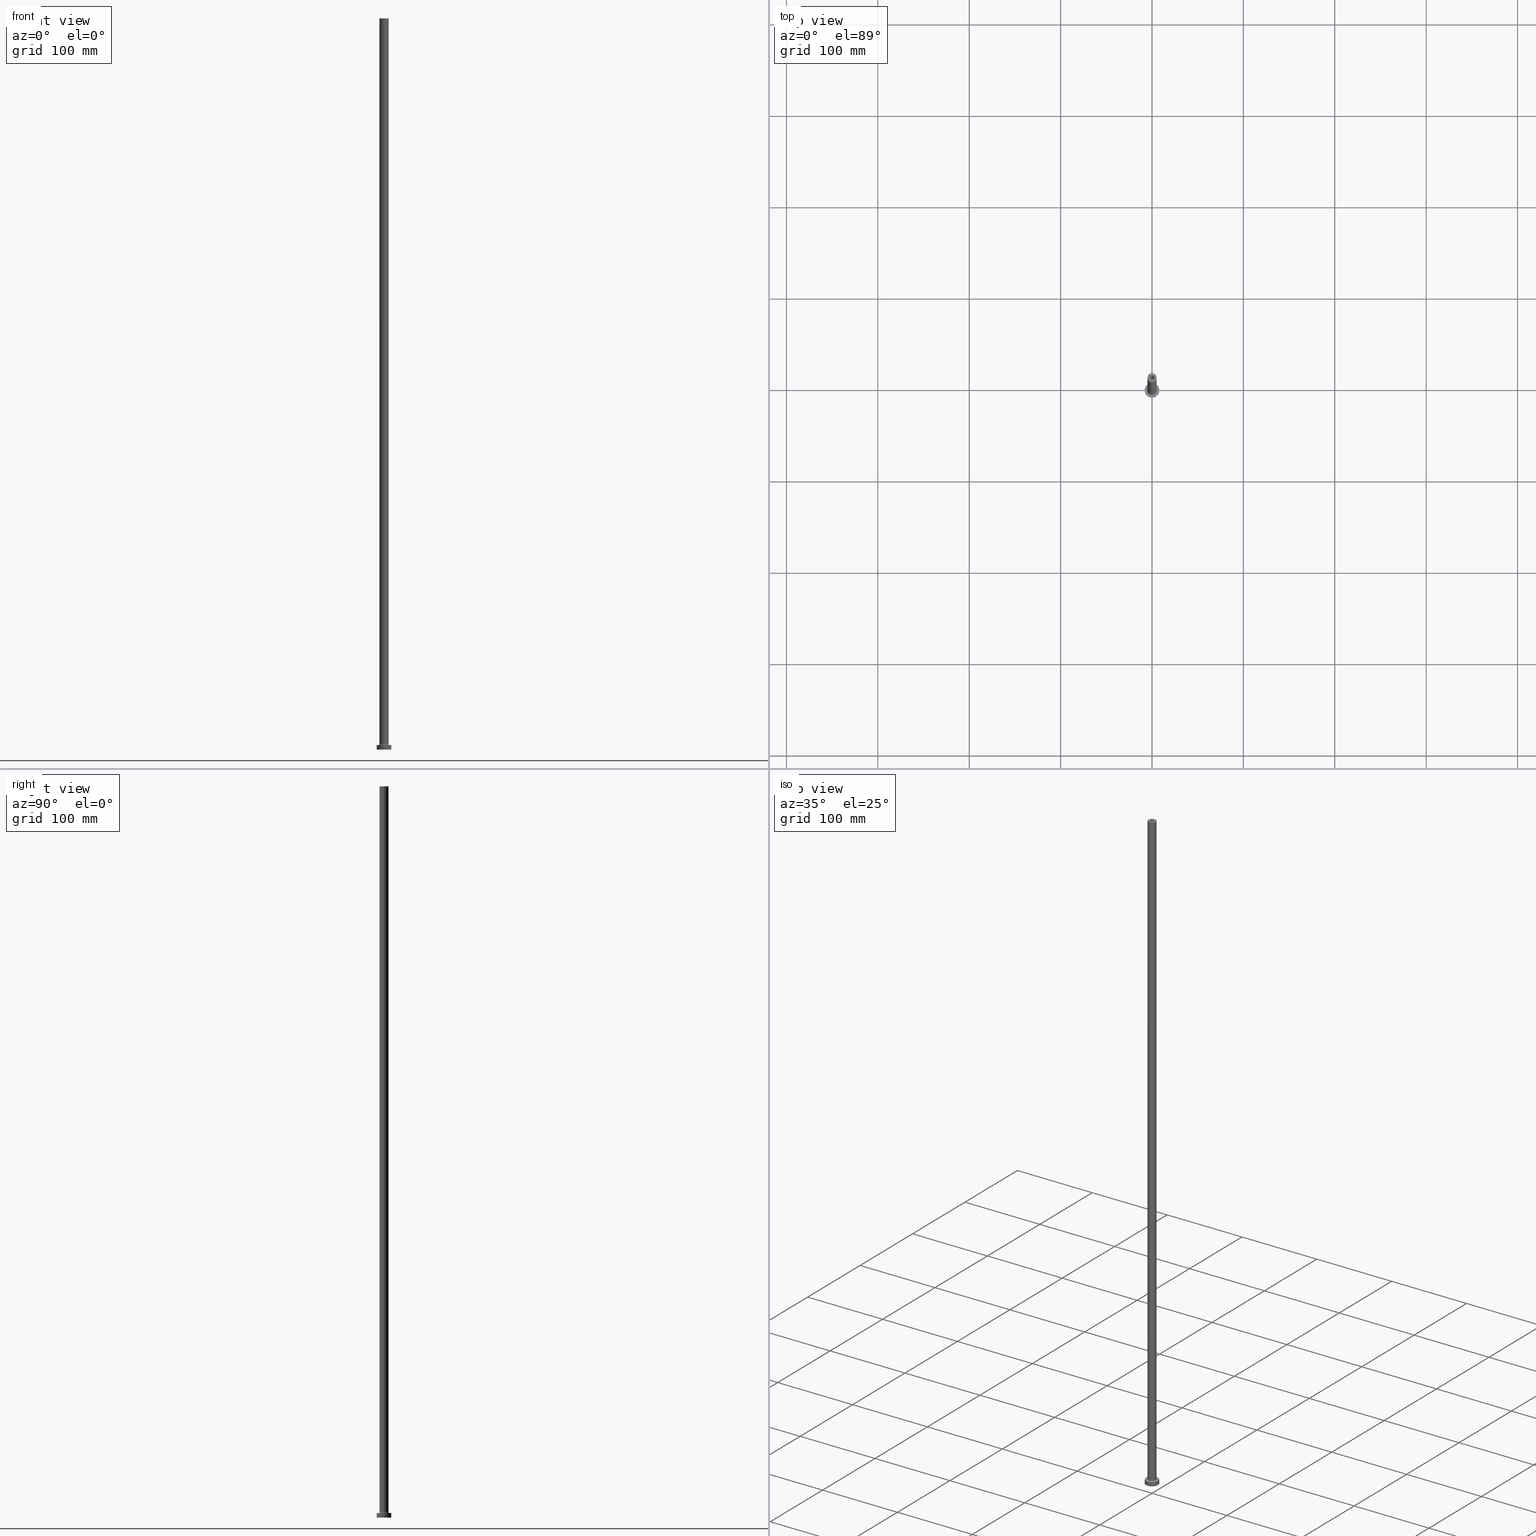
[diagram: canonical four-view strip — front | top / right | iso, engineering-drawing reading convention]
A machine part, canonical four-view strip (front | top / right | iso — engineering-drawing reading convention). The complete STEP part file that produces these views, byte-faithful:
ISO-10303-21;
HEADER;
FILE_DESCRIPTION (( 'STEP AP203' ),
    '1' );
FILE_NAME ('1a59.STEP',
    '2023-02-13T16:56:01',
    ( '' ),
    ( '' ),
    'SwSTEP 2.0',
    'SolidWorks 2019',
    '' );
FILE_SCHEMA (( 'CONFIG_CONTROL_DESIGN' ));
ENDSEC;

DATA;
#1 = DIRECTION ( 'NONE',  ( 0.000000000000000000, 0.000000000000000000, 1.000000000000000000 ) ) ;
#2 = LOCAL_TIME ( 17, 56, 1.000000000000000000, #363 ) ;
#3 = CIRCLE ( 'NONE', #120, 2.649999999999999911 ) ;
#4 = CARTESIAN_POINT ( 'NONE',  ( 2.649999999999999911, 3.245314017740485962E-16, 755.0000000000000000 ) ) ;
#5 = LINE ( 'NONE', #389, #299 ) ;
#6 = AXIS2_PLACEMENT_3D ( 'NONE', #245, #280, #47 ) ;
#7 = DIRECTION ( 'NONE',  ( 0.000000000000000000, 0.000000000000000000, 1.000000000000000000 ) ) ;
#8 = CC_DESIGN_APPROVAL ( #74, ( #235 ) ) ;
#9 = LINE ( 'NONE', #295, #325 ) ;
#10 = APPROVAL_DATE_TIME ( #357, #456 ) ;
#11 = CARTESIAN_POINT ( 'NONE',  ( 2.500000000000000000, 3.061616997868383141E-16, 755.0000000000000000 ) ) ;
#12 = EDGE_LOOP ( 'NONE', ( #359, #119, #17, #135 ) ) ;
#13 = COORDINATED_UNIVERSAL_TIME_OFFSET ( 1, 0, .AHEAD. ) ;
#14 = CIRCLE ( 'NONE', #269, 5.000000000000000000 ) ;
#15 = CARTESIAN_POINT ( 'NONE',  ( -2.500000000000000000, 0.000000000000000000, 755.0000000000000000 ) ) ;
#16 = AXIS2_PLACEMENT_3D ( 'NONE', #137, #273, #108 ) ;
#17 = ORIENTED_EDGE ( 'NONE', *, *, #266, .T. ) ;
#18 = EDGE_CURVE ( 'NONE', #132, #264, #14, .T. ) ;
#19 = LOCAL_TIME ( 17, 56, 1.000000000000000000, #370 ) ;
#20 = DIRECTION ( 'NONE',  ( 0.000000000000000000, 0.000000000000000000, -1.000000000000000000 ) ) ;
#21 = ORIENTED_EDGE ( 'NONE', *, *, #173, .T. ) ;
#22 = EDGE_CURVE ( 'NONE', #371, #219, #78, .T. ) ;
#23 = CARTESIAN_POINT ( 'NONE',  ( 8.000000000000000000, 9.797174393178825657E-16, 0.000000000000000000 ) ) ;
#24 = ORIENTED_EDGE ( 'NONE', *, *, #266, .F. ) ;
#25 = AXIS2_PLACEMENT_3D ( 'NONE', #183, #7, #351 ) ;
#26 = ORIENTED_EDGE ( 'NONE', *, *, #403, .F. ) ;
#27 = ORGANIZATION ( 'NEUR�EN�', 'NEUR�EN�', '' ) ;
#28 = EDGE_CURVE ( 'NONE', #371, #98, #380, .T. ) ;
#29 = PLANE ( 'NONE',  #95 ) ;
#30 = ORIENTED_EDGE ( 'NONE', *, *, #453, .T. ) ;
#31 = PRODUCT ( '1a59', '1a59', '', ( #316 ) ) ;
#32 = FACE_OUTER_BOUND ( 'NONE', #442, .T. ) ;
#33 = DIRECTION ( 'NONE',  ( -0.000000000000000000, -0.000000000000000000, -1.000000000000000000 ) ) ;
#34 = ORIENTED_EDGE ( 'NONE', *, *, #244, .F. ) ;
#35 = EDGE_CURVE ( 'NONE', #132, #416, #338, .T. ) ;
#36 = ORIENTED_EDGE ( 'NONE', *, *, #149, .F. ) ;
#37 = ORIENTED_EDGE ( 'NONE', *, *, #22, .F. ) ;
#38 = DIRECTION ( 'NONE',  ( 0.000000000000000000, 0.000000000000000000, -1.000000000000000000 ) ) ;
#39 = ORIENTED_EDGE ( 'NONE', *, *, #360, .F. ) ;
#40 = CARTESIAN_POINT ( 'NONE',  ( 0.000000000000000000, 0.000000000000000000, 0.000000000000000000 ) ) ;
#41 = DIRECTION ( 'NONE',  ( 1.000000000000000000, 0.000000000000000000, -0.000000000000000000 ) ) ;
#42 = AXIS2_PLACEMENT_3D ( 'NONE', #216, #419, #41 ) ;
#43 = UNCERTAINTY_MEASURE_WITH_UNIT (LENGTH_MEASURE( 1.000000000000000082E-05 ), #310, 'distance_accuracy_value', 'NONE');
#44 = CARTESIAN_POINT ( 'NONE',  ( 8.000000000000000000, 9.797174393178825657E-16, 5.000000000000000000 ) ) ;
#45 = LOCAL_TIME ( 17, 56, 1.000000000000000000, #13 ) ;
#46 = LINE ( 'NONE', #314, #101 ) ;
#47 = DIRECTION ( 'NONE',  ( -1.000000000000000000, 0.000000000000000000, 0.000000000000000000 ) ) ;
#48 = VECTOR ( 'NONE', #210, 1000.000000000000000 ) ;
#49 = COORDINATED_UNIVERSAL_TIME_OFFSET ( 1, 0, .AHEAD. ) ;
#50 = CARTESIAN_POINT ( 'NONE',  ( 0.000000000000000000, 0.000000000000000000, 5.000000000000000000 ) ) ;
#51 = DIRECTION ( 'NONE',  ( 0.000000000000000000, 0.000000000000000000, 1.000000000000000000 ) ) ;
#52 = DIRECTION ( 'NONE',  ( 0.000000000000000000, 0.000000000000000000, 1.000000000000000000 ) ) ;
#53 = EDGE_CURVE ( 'NONE', #416, #123, #459, .T. ) ;
#54 = ORIENTED_EDGE ( 'NONE', *, *, #281, .F. ) ;
#55 = ORIENTED_EDGE ( 'NONE', *, *, #28, .T. ) ;
#56 = APPROVAL_DATE_TIME ( #330, #385 ) ;
#57 = LINE ( 'NONE', #223, #396 ) ;
#58 = ADVANCED_FACE ( 'NONE', ( #72, #232 ), #333, .T. ) ;
#59 = DIRECTION ( 'NONE',  ( 0.000000000000000000, 0.000000000000000000, -1.000000000000000000 ) ) ;
#60 = EDGE_LOOP ( 'NONE', ( #368, #129, #384, #239 ) ) ;
#61 = EDGE_CURVE ( 'NONE', #332, #288, #388, .T. ) ;
#62 = ORIENTED_EDGE ( 'NONE', *, *, #61, .T. ) ;
#63 = PRODUCT_RELATED_PRODUCT_CATEGORY ( 'detail', '', ( #31 ) ) ;
#64 = CIRCLE ( 'NONE', #435, 2.500000000000000000 ) ;
#65 = FACE_OUTER_BOUND ( 'NONE', #433, .T. ) ;
#66 = AXIS2_PLACEMENT_3D ( 'NONE', #252, #406, #293 ) ;
#67 = PRODUCT_DEFINITION_FORMATION_WITH_SPECIFIED_SOURCE ( 'LIBOVOLN�', '', #31, .NOT_KNOWN. ) ;
#68 = DIRECTION ( 'NONE',  ( 0.000000000000000000, 0.000000000000000000, -1.000000000000000000 ) ) ;
#69 = PRODUCT_DEFINITION_SHAPE ( 'NONE', 'NONE',  #229 ) ;
#70 = DIRECTION ( 'NONE',  ( 0.000000000000000000, 0.000000000000000000, 1.000000000000000000 ) ) ;
#71 = ORIENTED_EDGE ( 'NONE', *, *, #18, .F. ) ;
#72 = FACE_BOUND ( 'NONE', #335, .T. ) ;
#73 = VECTOR ( 'NONE', #185, 1000.000000000000000 ) ;
#74 = APPROVAL ( #294, 'NEUR�EN�' ) ;
#75 = CYLINDRICAL_SURFACE ( 'NONE', #262, 2.649999999999999911 ) ;
#76 = DIRECTION ( 'NONE',  ( -1.000000000000000000, 0.000000000000000000, 0.000000000000000000 ) ) ;
#77 = DIRECTION ( 'NONE',  ( 0.000000000000000000, 0.000000000000000000, 1.000000000000000000 ) ) ;
#78 = CIRCLE ( 'NONE', #444, 2.649999999999999911 ) ;
#79 = AXIS2_PLACEMENT_3D ( 'NONE', #309, #381, #171 ) ;
#80 = ADVANCED_FACE ( 'NONE', ( #454 ), #167, .T. ) ;
#81 = FACE_OUTER_BOUND ( 'NONE', #408, .T. ) ;
#82 = PERSON ( 'NEUR�EN�', 'NEUR�EN�', 'NEUR�EN�', ('NEUR�EN�'), ('NEUR�EN�'), ('NEUR�EN�') ) ;
#83 = FACE_OUTER_BOUND ( 'NONE', #60, .T. ) ;
#84 = ADVANCED_FACE ( 'NONE', ( #100 ), #75, .F. ) ;
#85 = CARTESIAN_POINT ( 'NONE',  ( 0.000000000000000000, 0.000000000000000000, 5.000000000000000000 ) ) ;
#86 = VECTOR ( 'NONE', #450, 1000.000000000000000 ) ;
#87 = CIRCLE ( 'NONE', #311, 5.000000000000000000 ) ;
#88 = PERSON_AND_ORGANIZATION_ROLE ( 'classification_officer' ) ;
#89 = DIRECTION ( 'NONE',  ( 1.000000000000000000, 0.000000000000000000, 0.000000000000000000 ) ) ;
#90 = LOCAL_TIME ( 17, 56, 1.000000000000000000, #49 ) ;
#91 = PERSON_AND_ORGANIZATION ( #82, #27 ) ;
#92 = DIRECTION ( 'NONE',  ( 0.000000000000000000, 0.000000000000000000, 1.000000000000000000 ) ) ;
#93 = EDGE_LOOP ( 'NONE', ( #303, #157 ) ) ;
#94 = VERTEX_POINT ( 'NONE', #234 ) ;
#95 = AXIS2_PLACEMENT_3D ( 'NONE', #447, #131, #267 ) ;
#96 = CARTESIAN_POINT ( 'NONE',  ( 2.500000000000000000, 3.061616997868383141E-16, 800.0000000000000000 ) ) ;
#97 = AXIS2_PLACEMENT_3D ( 'NONE', #354, #195, #327 ) ;
#98 = VERTEX_POINT ( 'NONE', #165 ) ;
#99 = EDGE_LOOP ( 'NONE', ( #339, #174, #178, #130 ) ) ;
#100 = FACE_OUTER_BOUND ( 'NONE', #451, .T. ) ;
#101 = VECTOR ( 'NONE', #38, 1000.000000000000000 ) ;
#102 = CARTESIAN_POINT ( 'NONE',  ( -2.649999999999999911, 0.000000000000000000, 762.4953318805775098 ) ) ;
#103 = VERTEX_POINT ( 'NONE', #301 ) ;
#104 = CIRCLE ( 'NONE', #211, 2.500000000000000000 ) ;
#105 = ORIENTED_EDGE ( 'NONE', *, *, #453, .F. ) ;
#106 = CC_DESIGN_PERSON_AND_ORGANIZATION_ASSIGNMENT ( #326, #320, ( #229 ) ) ;
#107 = CARTESIAN_POINT ( 'NONE',  ( 0.000000000000000000, 0.000000000000000000, 755.0000000000000000 ) ) ;
#108 = DIRECTION ( 'NONE',  ( -1.000000000000000000, 0.000000000000000000, 0.000000000000000000 ) ) ;
#109 = CIRCLE ( 'NONE', #355, 5.000000000000000000 ) ;
#110 = DIRECTION ( 'NONE',  ( 1.224646799147353207E-16, 1.000000000000000000, -0.000000000000000000 ) ) ;
#111 = DIRECTION ( 'NONE',  ( -0.000000000000000000, -0.000000000000000000, -1.000000000000000000 ) ) ;
#112 = CARTESIAN_POINT ( 'NONE',  ( -5.500000000000000000, 6.735557395310442023E-16, 5.499999999999949374 ) ) ;
#113 = DIRECTION ( 'NONE',  ( 0.000000000000000000, 0.000000000000000000, 1.000000000000000000 ) ) ;
#114 = PERSON_AND_ORGANIZATION_ROLE ( 'creator' ) ;
#115 = CYLINDRICAL_SURFACE ( 'NONE', #240, 8.000000000000000000 ) ;
#116 = DATE_TIME_ROLE ( 'creation_date' ) ;
#117 = DIRECTION ( 'NONE',  ( 0.000000000000000000, 0.000000000000000000, 1.000000000000000000 ) ) ;
#118 = CARTESIAN_POINT ( 'NONE',  ( 0.000000000000000000, 0.000000000000000000, 5.000000000000000000 ) ) ;
#119 = ORIENTED_EDGE ( 'NONE', *, *, #203, .T. ) ;
#120 = AXIS2_PLACEMENT_3D ( 'NONE', #40, #383, #347 ) ;
#121 = CC_DESIGN_DATE_AND_TIME_ASSIGNMENT ( #194, #116, ( #229 ) ) ;
#122 = DIRECTION ( 'NONE',  ( -1.000000000000000000, 0.000000000000000000, 0.000000000000000000 ) ) ;
#123 = VERTEX_POINT ( 'NONE', #204 ) ;
#124 = CALENDAR_DATE ( 2023, 13, 2 ) ;
#125 = FACE_OUTER_BOUND ( 'NONE', #200, .T. ) ;
#126 = AXIS2_PLACEMENT_3D ( 'NONE', #214, #390, #313 ) ;
#127 = CYLINDRICAL_SURFACE ( 'NONE', #428, 2.500000000000000000 ) ;
#128 = ADVANCED_FACE ( 'NONE', ( #265, #65 ), #29, .T. ) ;
#129 = ORIENTED_EDGE ( 'NONE', *, *, #449, .F. ) ;
#130 = ORIENTED_EDGE ( 'NONE', *, *, #179, .F. ) ;
#131 = DIRECTION ( 'NONE',  ( 0.000000000000000000, 0.000000000000000000, 1.000000000000000000 ) ) ;
#132 = VERTEX_POINT ( 'NONE', #409 ) ;
#133 = DIRECTION ( 'NONE',  ( -0.000000000000000000, -0.000000000000000000, -1.000000000000000000 ) ) ;
#134 = DIRECTION ( 'NONE',  ( 0.000000000000000000, 0.000000000000000000, 1.000000000000000000 ) ) ;
#135 = ORIENTED_EDGE ( 'NONE', *, *, #217, .F. ) ;
#136 = ADVANCED_FACE ( 'NONE', ( #32 ), #169, .T. ) ;
#137 = CARTESIAN_POINT ( 'NONE',  ( 0.000000000000000000, 0.000000000000000000, 5.000000000000000000 ) ) ;
#138 =( NAMED_UNIT ( * ) PLANE_ANGLE_UNIT ( ) SI_UNIT ( $, .RADIAN. ) );
#139 = DIRECTION ( 'NONE',  ( -1.000000000000000000, 1.224646799147351482E-16, 0.000000000000000000 ) ) ;
#140 = CC_DESIGN_PERSON_AND_ORGANIZATION_ASSIGNMENT ( #292, #88, ( #235 ) ) ;
#141 = PERSON_AND_ORGANIZATION_ROLE ( 'design_owner' ) ;
#142 = CARTESIAN_POINT ( 'NONE',  ( -5.000000000000000000, 0.000000000000000000, 800.0000000000000000 ) ) ;
#143 = ADVANCED_FACE ( 'NONE', ( #343 ), #193, .F. ) ;
#144 = CARTESIAN_POINT ( 'NONE',  ( -8.000000000000000000, 0.000000000000000000, 0.000000000000000000 ) ) ;
#145 = APPLICATION_CONTEXT ( 'configuration controlled 3d designs of mechanical parts and assemblies' ) ;
#146 = CARTESIAN_POINT ( 'NONE',  ( -5.500000000000000000, 6.735557395310442023E-16, 4.999999999999975131 ) ) ;
#147 = AXIS2_PLACEMENT_3D ( 'NONE', #386, #113, #426 ) ;
#148 = DIRECTION ( 'NONE',  ( -1.000000000000000000, 0.000000000000000000, 0.000000000000000000 ) ) ;
#149 = EDGE_CURVE ( 'NONE', #219, #103, #46, .T. ) ;
#150 = DIRECTION ( 'NONE',  ( 0.000000000000000000, 0.000000000000000000, 1.000000000000000000 ) ) ;
#151 = COORDINATED_UNIVERSAL_TIME_OFFSET ( 1, 0, .AHEAD. ) ;
#152 = DIRECTION ( 'NONE',  ( 1.000000000000000000, 0.000000000000000000, 0.000000000000000000 ) ) ;
#153 = ORIENTED_EDGE ( 'NONE', *, *, #215, .T. ) ;
#154 = ORIENTED_EDGE ( 'NONE', *, *, #18, .T. ) ;
#155 = CIRCLE ( 'NONE', #189, 2.649999999999999911 ) ;
#156 = FACE_OUTER_BOUND ( 'NONE', #365, .T. ) ;
#157 = ORIENTED_EDGE ( 'NONE', *, *, #179, .T. ) ;
#158 = ADVANCED_FACE ( 'NONE', ( #81 ), #352, .T. ) ;
#159 = DIRECTION ( 'NONE',  ( -1.000000000000000000, 0.000000000000000000, 0.000000000000000000 ) ) ;
#160 = ORIENTED_EDGE ( 'NONE', *, *, #35, .T. ) ;
#161 = DIRECTION ( 'NONE',  ( 1.000000000000000000, 0.000000000000000000, 0.000000000000000000 ) ) ;
#162 = ORIENTED_EDGE ( 'NONE', *, *, #337, .T. ) ;
#163 = CIRCLE ( 'NONE', #25, 8.000000000000000000 ) ;
#164 = ADVANCED_FACE ( 'NONE', ( #209 ), #201, .F. ) ;
#165 = CARTESIAN_POINT ( 'NONE',  ( -2.649999999999999911, 0.000000000000000000, 0.000000000000000000 ) ) ;
#166 = EDGE_LOOP ( 'NONE', ( #417, #154 ) ) ;
#167 = CYLINDRICAL_SURFACE ( 'NONE', #16, 8.000000000000000000 ) ;
#168 = ORIENTED_EDGE ( 'NONE', *, *, #392, .T. ) ;
#169 = CYLINDRICAL_SURFACE ( 'NONE', #324, 5.000000000000000000 ) ;
#170 = AXIS2_PLACEMENT_3D ( 'NONE', #373, #134, #207 ) ;
#171 = DIRECTION ( 'NONE',  ( 0.000000000000000000, 0.000000000000000000, -1.000000000000000000 ) ) ;
#172 = ORIENTED_EDGE ( 'NONE', *, *, #35, .F. ) ;
#173 = EDGE_CURVE ( 'NONE', #264, #446, #430, .T. ) ;
#174 = ORIENTED_EDGE ( 'NONE', *, *, #284, .F. ) ;
#175 = ORIENTED_EDGE ( 'NONE', *, *, #452, .F. ) ;
#176 = ADVANCED_FACE ( 'NONE', ( #243 ), #429, .F. ) ;
#177 = DIRECTION ( 'NONE',  ( 1.000000000000000000, 0.000000000000000000, 0.000000000000000000 ) ) ;
#178 = ORIENTED_EDGE ( 'NONE', *, *, #53, .T. ) ;
#179 = EDGE_CURVE ( 'NONE', #227, #123, #318, .T. ) ;
#180 = DIRECTION ( 'NONE',  ( -0.000000000000000000, -0.000000000000000000, -1.000000000000000000 ) ) ;
#181 = AXIS2_PLACEMENT_3D ( 'NONE', #118, #257, #399 ) ;
#182 = LOCAL_TIME ( 17, 56, 1.000000000000000000, #151 ) ;
#183 = CARTESIAN_POINT ( 'NONE',  ( 0.000000000000000000, 0.000000000000000000, 0.000000000000000000 ) ) ;
#184 = DIRECTION ( 'NONE',  ( 0.000000000000000000, 0.000000000000000000, 1.000000000000000000 ) ) ;
#185 = DIRECTION ( 'NONE',  ( -0.000000000000000000, -0.000000000000000000, -1.000000000000000000 ) ) ;
#186 = CARTESIAN_POINT ( 'NONE',  ( 8.000000000000000000, 9.797174393178825657E-16, 5.000000000000000000 ) ) ;
#187 = CLOSED_SHELL ( 'NONE', ( #423, #176, #143, #136, #80, #190, #128, #407, #158, #58, #164, #84, #248, #340 ) ) ;
#188 = CIRCLE ( 'NONE', #375, 0.5000000000000004441 ) ;
#189 = AXIS2_PLACEMENT_3D ( 'NONE', #197, #51, #89 ) ;
#190 = ADVANCED_FACE ( 'NONE', ( #83 ), #115, .T. ) ;
#191 = DIRECTION ( 'NONE',  ( 1.000000000000000000, 0.000000000000000000, 0.000000000000000000 ) ) ;
#192 = CALENDAR_DATE ( 2023, 13, 2 ) ;
#193 = TOROIDAL_SURFACE ( 'NONE', #147, 5.500000000000000000, 0.5000000000000000000 ) ;
#194 = DATE_AND_TIME ( #124, #2 ) ;
#195 = DIRECTION ( 'NONE',  ( -0.000000000000000000, -0.000000000000000000, -1.000000000000000000 ) ) ;
#196 = ORIENTED_EDGE ( 'NONE', *, *, #149, .T. ) ;
#197 = CARTESIAN_POINT ( 'NONE',  ( 0.000000000000000000, 0.000000000000000000, 755.0000000000000000 ) ) ;
#198 = ORIENTED_EDGE ( 'NONE', *, *, #173, .F. ) ;
#199 = SHAPE_DEFINITION_REPRESENTATION ( #69, #259 ) ;
#200 = EDGE_LOOP ( 'NONE', ( #34, #24 ) ) ;
#201 = TOROIDAL_SURFACE ( 'NONE', #206, 5.500000000000000000, 0.5000000000000000000 ) ;
#202 = DIRECTION ( 'NONE',  ( 0.000000000000000000, 0.000000000000000000, 1.000000000000000000 ) ) ;
#203 = EDGE_CURVE ( 'NONE', #268, #378, #250, .T. ) ;
#204 = CARTESIAN_POINT ( 'NONE',  ( 5.500000000000000000, 0.000000000000000000, 4.999999999999975131 ) ) ;
#205 = CARTESIAN_POINT ( 'NONE',  ( 0.000000000000000000, 0.000000000000000000, 800.0000000000000000 ) ) ;
#206 = AXIS2_PLACEMENT_3D ( 'NONE', #391, #422, #457 ) ;
#207 = DIRECTION ( 'NONE',  ( 1.000000000000000000, 0.000000000000000000, -0.000000000000000000 ) ) ;
#208 = ORIENTED_EDGE ( 'NONE', *, *, #231, .F. ) ;
#209 = FACE_OUTER_BOUND ( 'NONE', #99, .T. ) ;
#210 = DIRECTION ( 'NONE',  ( -0.000000000000000000, -0.000000000000000000, -1.000000000000000000 ) ) ;
#211 = AXIS2_PLACEMENT_3D ( 'NONE', #225, #184, #242 ) ;
#212 = APPLICATION_PROTOCOL_DEFINITION ( 'international standard', 'config_control_design', 1994, #145 ) ;
#213 = APPROVAL_PERSON_ORGANIZATION ( #91, #74, #402 ) ;
#214 = CARTESIAN_POINT ( 'NONE',  ( 0.000000000000000000, 0.000000000000000000, 5.000000000000000000 ) ) ;
#215 = EDGE_CURVE ( 'NONE', #446, #227, #188, .T. ) ;
#216 = CARTESIAN_POINT ( 'NONE',  ( 0.000000000000000000, 0.000000000000000000, 755.0000000000000000 ) ) ;
#217 = EDGE_CURVE ( 'NONE', #328, #238, #5, .T. ) ;
#218 = CARTESIAN_POINT ( 'NONE',  ( 0.000000000000000000, 0.000000000000000000, 800.0000000000000000 ) ) ;
#219 = VERTEX_POINT ( 'NONE', #4 ) ;
#220 = AXIS2_PLACEMENT_3D ( 'NONE', #387, #77, #348 ) ;
#221 = CC_DESIGN_PERSON_AND_ORGANIZATION_ASSIGNMENT ( #393, #353, ( #67 ) ) ;
#222 = DATE_AND_TIME ( #260, #45 ) ;
#223 = CARTESIAN_POINT ( 'NONE',  ( -2.500000000000000000, 0.000000000000000000, 800.0000000000000000 ) ) ;
#224 = PERSON_AND_ORGANIZATION ( #82, #27 ) ;
#225 = CARTESIAN_POINT ( 'NONE',  ( 0.000000000000000000, 0.000000000000000000, 755.0000000000000000 ) ) ;
#226 = ORIENTED_EDGE ( 'NONE', *, *, #53, .F. ) ;
#227 = VERTEX_POINT ( 'NONE', #146 ) ;
#228 = DIRECTION ( 'NONE',  ( 1.000000000000000000, 0.000000000000000000, 0.000000000000000000 ) ) ;
#229 = PRODUCT_DEFINITION ( 'NEZN�M�', '', #67, #414 ) ;
#230 = ORIENTED_EDGE ( 'NONE', *, *, #392, .F. ) ;
#231 = EDGE_CURVE ( 'NONE', #446, #416, #109, .T. ) ;
#232 = FACE_OUTER_BOUND ( 'NONE', #166, .T. ) ;
#233 = CIRCLE ( 'NONE', #312, 2.649999999999999911 ) ;
#234 = CARTESIAN_POINT ( 'NONE',  ( -2.500000000000000000, 0.000000000000000000, 800.0000000000000000 ) ) ;
#235 = SECURITY_CLASSIFICATION ( '', '', #256 ) ;
#236 = MANIFOLD_SOLID_BREP ( 'Odebrat vysunut�m4', #187 ) ;
#237 = DIRECTION ( 'NONE',  ( 1.000000000000000000, 0.000000000000000000, 0.000000000000000000 ) ) ;
#238 = VERTEX_POINT ( 'NONE', #144 ) ;
#239 = ORIENTED_EDGE ( 'NONE', *, *, #244, .T. ) ;
#240 = AXIS2_PLACEMENT_3D ( 'NONE', #85, #180, #148 ) ;
#241 = CARTESIAN_POINT ( 'NONE',  ( 0.000000000000000000, 0.000000000000000000, 762.4953318805775098 ) ) ;
#242 = DIRECTION ( 'NONE',  ( 1.000000000000000000, 0.000000000000000000, 0.000000000000000000 ) ) ;
#243 = FACE_OUTER_BOUND ( 'NONE', #274, .T. ) ;
#244 = EDGE_CURVE ( 'NONE', #238, #378, #163, .T. ) ;
#245 = CARTESIAN_POINT ( 'NONE',  ( 0.000000000000000000, 0.000000000000000000, 762.4953318805775098 ) ) ;
#246 = AXIS2_PLACEMENT_3D ( 'NONE', #218, #20, #159 ) ;
#247 = CIRCLE ( 'NONE', #319, 8.000000000000000000 ) ;
#248 = ADVANCED_FACE ( 'NONE', ( #315, #283 ), #277, .F. ) ;
#249 = CARTESIAN_POINT ( 'NONE',  ( 0.000000000000000000, 0.000000000000000000, 800.0000000000000000 ) ) ;
#250 = LINE ( 'NONE', #186, #48 ) ;
#251 = PERSON_AND_ORGANIZATION ( #82, #27 ) ;
#252 = CARTESIAN_POINT ( 'NONE',  ( 0.000000000000000000, 0.000000000000000000, 0.000000000000000000 ) ) ;
#253 = EDGE_LOOP ( 'NONE', ( #62, #362 ) ) ;
#254 = CIRCLE ( 'NONE', #276, 5.000000000000000000 ) ;
#255 = CIRCLE ( 'NONE', #97, 5.500000000000000000 ) ;
#256 = SECURITY_CLASSIFICATION_LEVEL ( 'unclassified' ) ;
#257 = DIRECTION ( 'NONE',  ( 0.000000000000000000, 0.000000000000000000, 1.000000000000000000 ) ) ;
#258 = CARTESIAN_POINT ( 'NONE',  ( 0.000000000000000000, 0.000000000000000000, 0.000000000000000000 ) ) ;
#259 = ADVANCED_BREP_SHAPE_REPRESENTATION ( '1a59', ( #236, #438 ), #356 ) ;
#260 = CALENDAR_DATE ( 2023, 13, 2 ) ;
#261 = EDGE_LOOP ( 'NONE', ( #208, #153, #26, #226 ) ) ;
#262 = AXIS2_PLACEMENT_3D ( 'NONE', #241, #68, #302 ) ;
#263 = DIRECTION ( 'NONE',  ( 0.000000000000000000, 0.000000000000000000, 1.000000000000000000 ) ) ;
#264 = VERTEX_POINT ( 'NONE', #142 ) ;
#265 = FACE_BOUND ( 'NONE', #93, .T. ) ;
#266 = EDGE_CURVE ( 'NONE', #378, #238, #418, .T. ) ;
#267 = DIRECTION ( 'NONE',  ( 1.000000000000000000, 0.000000000000000000, -0.000000000000000000 ) ) ;
#268 = VERTEX_POINT ( 'NONE', #44 ) ;
#269 = AXIS2_PLACEMENT_3D ( 'NONE', #205, #70, #237 ) ;
#270 = AXIS2_PLACEMENT_3D ( 'NONE', #331, #263, #161 ) ;
#271 = DIRECTION ( 'NONE',  ( -1.000000000000000000, 0.000000000000000000, 0.000000000000000000 ) ) ;
#272 = EDGE_LOOP ( 'NONE', ( #344, #168, #290, #175 ) ) ;
#273 = DIRECTION ( 'NONE',  ( -0.000000000000000000, -0.000000000000000000, -1.000000000000000000 ) ) ;
#274 = EDGE_LOOP ( 'NONE', ( #397, #196, #30, #366 ) ) ;
#275 = DIRECTION ( 'NONE',  ( 0.000000000000000000, 0.000000000000000000, 1.000000000000000000 ) ) ;
#276 = AXIS2_PLACEMENT_3D ( 'NONE', #441, #92, #152 ) ;
#277 = PLANE ( 'NONE',  #42 ) ;
#278 = APPROVAL_PERSON_ORGANIZATION ( #421, #385, #431 ) ;
#279 = APPLICATION_PROTOCOL_DEFINITION ( 'international standard', 'config_control_design', 1994, #401 ) ;
#280 = DIRECTION ( 'NONE',  ( 0.000000000000000000, 0.000000000000000000, -1.000000000000000000 ) ) ;
#281 = EDGE_CURVE ( 'NONE', #264, #132, #254, .T. ) ;
#282 = DIRECTION ( 'NONE',  ( -0.000000000000000000, -0.000000000000000000, -1.000000000000000000 ) ) ;
#283 = FACE_OUTER_BOUND ( 'NONE', #297, .T. ) ;
#284 = EDGE_CURVE ( 'NONE', #416, #446, #87, .T. ) ;
#285 = APPROVAL_STATUS ( 'not_yet_approved' ) ;
#286 = APPROVAL_STATUS ( 'not_yet_approved' ) ;
#287 = DIRECTION ( 'NONE',  ( 0.000000000000000000, 0.000000000000000000, -1.000000000000000000 ) ) ;
#288 = VERTEX_POINT ( 'NONE', #11 ) ;
#289 = CARTESIAN_POINT ( 'NONE',  ( 0.000000000000000000, 0.000000000000000000, 800.0000000000000000 ) ) ;
#290 = ORIENTED_EDGE ( 'NONE', *, *, #360, .T. ) ;
#291 = ORIENTED_EDGE ( 'NONE', *, *, #61, .F. ) ;
#292 = PERSON_AND_ORGANIZATION ( #82, #27 ) ;
#293 = DIRECTION ( 'NONE',  ( 1.000000000000000000, 0.000000000000000000, -0.000000000000000000 ) ) ;
#294 = APPROVAL_STATUS ( 'not_yet_approved' ) ;
#295 = CARTESIAN_POINT ( 'NONE',  ( 2.500000000000000000, 3.061616997868383141E-16, 800.0000000000000000 ) ) ;
#296 = FACE_BOUND ( 'NONE', #374, .T. ) ;
#297 = EDGE_LOOP ( 'NONE', ( #37, #458 ) ) ;
#298 = ORIENTED_EDGE ( 'NONE', *, *, #424, .T. ) ;
#299 = VECTOR ( 'NONE', #111, 1000.000000000000000 ) ;
#300 = CC_DESIGN_PERSON_AND_ORGANIZATION_ASSIGNMENT ( #345, #141, ( #31 ) ) ;
#301 = CARTESIAN_POINT ( 'NONE',  ( 2.649999999999999911, 3.245314017740485962E-16, 0.000000000000000000 ) ) ;
#302 = DIRECTION ( 'NONE',  ( -1.000000000000000000, 0.000000000000000000, 0.000000000000000000 ) ) ;
#303 = ORIENTED_EDGE ( 'NONE', *, *, #403, .T. ) ;
#304 = ORIENTED_EDGE ( 'NONE', *, *, #342, .T. ) ;
#305 = DATE_AND_TIME ( #405, #19 ) ;
#306 = CIRCLE ( 'NONE', #270, 2.500000000000000000 ) ;
#307 = VERTEX_POINT ( 'NONE', #96 ) ;
#308 = CC_DESIGN_SECURITY_CLASSIFICATION ( #235, ( #67 ) ) ;
#309 = CARTESIAN_POINT ( 'NONE',  ( 5.500000000000000000, 0.000000000000000000, 5.499999999999949374 ) ) ;
#310 =( LENGTH_UNIT ( ) NAMED_UNIT ( * ) SI_UNIT ( .MILLI., .METRE. ) );
#311 = AXIS2_PLACEMENT_3D ( 'NONE', #361, #150, #404 ) ;
#312 = AXIS2_PLACEMENT_3D ( 'NONE', #258, #321, #358 ) ;
#313 = DIRECTION ( 'NONE',  ( 1.000000000000000000, 0.000000000000000000, 0.000000000000000000 ) ) ;
#314 = CARTESIAN_POINT ( 'NONE',  ( 2.649999999999999911, 3.245314017740485962E-16, 762.4953318805775098 ) ) ;
#315 = FACE_BOUND ( 'NONE', #253, .T. ) ;
#316 = MECHANICAL_CONTEXT ( 'NONE', #145, 'mechanical' ) ;
#317 = CARTESIAN_POINT ( 'NONE',  ( 0.000000000000000000, 0.000000000000000000, 5.499999999999949374 ) ) ;
#318 = CIRCLE ( 'NONE', #126, 5.500000000000000000 ) ;
#319 = AXIS2_PLACEMENT_3D ( 'NONE', #50, #117, #191 ) ;
#320 = PERSON_AND_ORGANIZATION_ROLE ( 'creator' ) ;
#321 = DIRECTION ( 'NONE',  ( -0.000000000000000000, -0.000000000000000000, -1.000000000000000000 ) ) ;
#322 = CARTESIAN_POINT ( 'NONE',  ( -5.000000000000000000, 0.000000000000000000, 5.499999999999949374 ) ) ;
#323 = APPROVAL_ROLE ( '' ) ;
#324 = AXIS2_PLACEMENT_3D ( 'NONE', #448, #133, #271 ) ;
#325 = VECTOR ( 'NONE', #432, 1000.000000000000000 ) ;
#326 = PERSON_AND_ORGANIZATION ( #82, #27 ) ;
#327 = DIRECTION ( 'NONE',  ( 1.000000000000000000, 0.000000000000000000, 0.000000000000000000 ) ) ;
#328 = VERTEX_POINT ( 'NONE', #440 ) ;
#329 = ORIENTED_EDGE ( 'NONE', *, *, #420, .F. ) ;
#330 = DATE_AND_TIME ( #439, #90 ) ;
#331 = CARTESIAN_POINT ( 'NONE',  ( 0.000000000000000000, 0.000000000000000000, 800.0000000000000000 ) ) ;
#332 = VERTEX_POINT ( 'NONE', #15 ) ;
#333 = PLANE ( 'NONE',  #170 ) ;
#334 = CC_DESIGN_APPROVAL ( #385, ( #229 ) ) ;
#335 = EDGE_LOOP ( 'NONE', ( #436, #230 ) ) ;
#336 = DIRECTION ( 'NONE',  ( 0.000000000000000000, 0.000000000000000000, 1.000000000000000000 ) ) ;
#337 = EDGE_CURVE ( 'NONE', #94, #307, #64, .T. ) ;
#338 = LINE ( 'NONE', #376, #394 ) ;
#339 = ORIENTED_EDGE ( 'NONE', *, *, #215, .F. ) ;
#340 = ADVANCED_FACE ( 'NONE', ( #367 ), #127, .F. ) ;
#341 = DIRECTION ( 'NONE',  ( 1.000000000000000000, 0.000000000000000000, 0.000000000000000000 ) ) ;
#342 = EDGE_CURVE ( 'NONE', #219, #371, #155, .T. ) ;
#343 = FACE_OUTER_BOUND ( 'NONE', #261, .T. ) ;
#344 = ORIENTED_EDGE ( 'NONE', *, *, #424, .F. ) ;
#345 = PERSON_AND_ORGANIZATION ( #82, #27 ) ;
#346 = CARTESIAN_POINT ( 'NONE',  ( -5.000000000000000000, 0.000000000000000000, 800.0000000000000000 ) ) ;
#347 = DIRECTION ( 'NONE',  ( 1.000000000000000000, 0.000000000000000000, 0.000000000000000000 ) ) ;
#348 = DIRECTION ( 'NONE',  ( 1.000000000000000000, 0.000000000000000000, 0.000000000000000000 ) ) ;
#349 = CIRCLE ( 'NONE', #181, 8.000000000000000000 ) ;
#350 = CC_DESIGN_APPROVAL ( #456, ( #67 ) ) ;
#351 = DIRECTION ( 'NONE',  ( 1.000000000000000000, 0.000000000000000000, 0.000000000000000000 ) ) ;
#352 = CYLINDRICAL_SURFACE ( 'NONE', #460, 5.000000000000000000 ) ;
#353 = PERSON_AND_ORGANIZATION_ROLE ( 'design_supplier' ) ;
#354 = CARTESIAN_POINT ( 'NONE',  ( 0.000000000000000000, 0.000000000000000000, 5.000000000000000000 ) ) ;
#355 = AXIS2_PLACEMENT_3D ( 'NONE', #317, #1, #177 ) ;
#356 =( GEOMETRIC_REPRESENTATION_CONTEXT ( 3 ) GLOBAL_UNCERTAINTY_ASSIGNED_CONTEXT ( ( #43 ) ) GLOBAL_UNIT_ASSIGNED_CONTEXT ( ( #310, #138, #461 ) ) REPRESENTATION_CONTEXT ( 'NONE', 'WORKASPACE' ) );
#357 = DATE_AND_TIME ( #192, #182 ) ;
#358 = DIRECTION ( 'NONE',  ( 1.000000000000000000, 0.000000000000000000, 0.000000000000000000 ) ) ;
#359 = ORIENTED_EDGE ( 'NONE', *, *, #427, .F. ) ;
#360 = EDGE_CURVE ( 'NONE', #94, #332, #57, .T. ) ;
#361 = CARTESIAN_POINT ( 'NONE',  ( 0.000000000000000000, 0.000000000000000000, 5.499999999999949374 ) ) ;
#362 = ORIENTED_EDGE ( 'NONE', *, *, #452, .T. ) ;
#363 = COORDINATED_UNIVERSAL_TIME_OFFSET ( 1, 0, .AHEAD. ) ;
#364 = CARTESIAN_POINT ( 'NONE',  ( 0.000000000000000000, 0.000000000000000000, 800.0000000000000000 ) ) ;
#365 = EDGE_LOOP ( 'NONE', ( #162, #298, #291, #39 ) ) ;
#366 = ORIENTED_EDGE ( 'NONE', *, *, #28, .F. ) ;
#367 = FACE_OUTER_BOUND ( 'NONE', #272, .T. ) ;
#368 = ORIENTED_EDGE ( 'NONE', *, *, #203, .F. ) ;
#369 = ORIENTED_EDGE ( 'NONE', *, *, #284, .T. ) ;
#370 = COORDINATED_UNIVERSAL_TIME_OFFSET ( 1, 0, .AHEAD. ) ;
#371 = VERTEX_POINT ( 'NONE', #395 ) ;
#372 = CC_DESIGN_PERSON_AND_ORGANIZATION_ASSIGNMENT ( #251, #114, ( #67 ) ) ;
#373 = CARTESIAN_POINT ( 'NONE',  ( 0.000000000000000000, 0.000000000000000000, 800.0000000000000000 ) ) ;
#374 = EDGE_LOOP ( 'NONE', ( #329, #105 ) ) ;
#375 = AXIS2_PLACEMENT_3D ( 'NONE', #112, #110, #139 ) ;
#376 = CARTESIAN_POINT ( 'NONE',  ( 5.000000000000000000, 6.123233995736766282E-16, 800.0000000000000000 ) ) ;
#377 = APPROVAL_PERSON_ORGANIZATION ( #224, #456, #323 ) ;
#378 = VERTEX_POINT ( 'NONE', #23 ) ;
#379 = APPROVAL_DATE_TIME ( #305, #74 ) ;
#380 = LINE ( 'NONE', #102, #86 ) ;
#381 = DIRECTION ( 'NONE',  ( 0.000000000000000000, -1.000000000000000000, 0.000000000000000000 ) ) ;
#382 = ORIENTED_EDGE ( 'NONE', *, *, #427, .T. ) ;
#383 = DIRECTION ( 'NONE',  ( -0.000000000000000000, -0.000000000000000000, -1.000000000000000000 ) ) ;
#384 = ORIENTED_EDGE ( 'NONE', *, *, #217, .T. ) ;
#385 = APPROVAL ( #286, 'NEUR�EN�' ) ;
#386 = CARTESIAN_POINT ( 'NONE',  ( 0.000000000000000000, 0.000000000000000000, 5.499999999999949374 ) ) ;
#387 = CARTESIAN_POINT ( 'NONE',  ( 0.000000000000000000, 0.000000000000000000, 0.000000000000000000 ) ) ;
#388 = CIRCLE ( 'NONE', #410, 2.500000000000000000 ) ;
#389 = CARTESIAN_POINT ( 'NONE',  ( -8.000000000000000000, 0.000000000000000000, 5.000000000000000000 ) ) ;
#390 = DIRECTION ( 'NONE',  ( -0.000000000000000000, -0.000000000000000000, -1.000000000000000000 ) ) ;
#391 = CARTESIAN_POINT ( 'NONE',  ( 0.000000000000000000, 0.000000000000000000, 5.499999999999949374 ) ) ;
#392 = EDGE_CURVE ( 'NONE', #307, #94, #306, .T. ) ;
#393 = PERSON_AND_ORGANIZATION ( #82, #27 ) ;
#394 = VECTOR ( 'NONE', #33, 1000.000000000000000 ) ;
#395 = CARTESIAN_POINT ( 'NONE',  ( -2.649999999999999911, 0.000000000000000000, 755.0000000000000000 ) ) ;
#396 = VECTOR ( 'NONE', #287, 1000.000000000000000 ) ;
#397 = ORIENTED_EDGE ( 'NONE', *, *, #22, .T. ) ;
#398 = DATE_TIME_ROLE ( 'classification_date' ) ;
#399 = DIRECTION ( 'NONE',  ( 1.000000000000000000, 0.000000000000000000, 0.000000000000000000 ) ) ;
#400 = CYLINDRICAL_SURFACE ( 'NONE', #246, 2.500000000000000000 ) ;
#401 = APPLICATION_CONTEXT ( 'configuration controlled 3d designs of mechanical parts and assemblies' ) ;
#402 = APPROVAL_ROLE ( '' ) ;
#403 = EDGE_CURVE ( 'NONE', #123, #227, #255, .T. ) ;
#404 = DIRECTION ( 'NONE',  ( 1.000000000000000000, 0.000000000000000000, 0.000000000000000000 ) ) ;
#405 = CALENDAR_DATE ( 2023, 13, 2 ) ;
#406 = DIRECTION ( 'NONE',  ( 0.000000000000000000, 0.000000000000000000, 1.000000000000000000 ) ) ;
#407 = ADVANCED_FACE ( 'NONE', ( #296, #125 ), #443, .F. ) ;
#408 = EDGE_LOOP ( 'NONE', ( #172, #54, #21, #445 ) ) ;
#409 = CARTESIAN_POINT ( 'NONE',  ( 5.000000000000000000, 6.123233995736766282E-16, 800.0000000000000000 ) ) ;
#410 = AXIS2_PLACEMENT_3D ( 'NONE', #107, #336, #341 ) ;
#411 = CC_DESIGN_DATE_AND_TIME_ASSIGNMENT ( #222, #398, ( #235 ) ) ;
#412 = CARTESIAN_POINT ( 'NONE',  ( 0.000000000000000000, 0.000000000000000000, 755.0000000000000000 ) ) ;
#413 = ORIENTED_EDGE ( 'NONE', *, *, #449, .T. ) ;
#414 = DESIGN_CONTEXT ( 'detailed design', #401, 'design' ) ;
#415 = DIRECTION ( 'NONE',  ( 1.000000000000000000, 0.000000000000000000, 0.000000000000000000 ) ) ;
#416 = VERTEX_POINT ( 'NONE', #434 ) ;
#417 = ORIENTED_EDGE ( 'NONE', *, *, #281, .T. ) ;
#418 = CIRCLE ( 'NONE', #220, 8.000000000000000000 ) ;
#419 = DIRECTION ( 'NONE',  ( 0.000000000000000000, 0.000000000000000000, 1.000000000000000000 ) ) ;
#420 = EDGE_CURVE ( 'NONE', #98, #103, #233, .T. ) ;
#421 = PERSON_AND_ORGANIZATION ( #82, #27 ) ;
#422 = DIRECTION ( 'NONE',  ( 0.000000000000000000, 0.000000000000000000, 1.000000000000000000 ) ) ;
#423 = ADVANCED_FACE ( 'NONE', ( #156 ), #400, .F. ) ;
#424 = EDGE_CURVE ( 'NONE', #307, #288, #9, .T. ) ;
#425 = DIRECTION ( 'NONE',  ( 1.000000000000000000, 0.000000000000000000, 0.000000000000000000 ) ) ;
#426 = DIRECTION ( 'NONE',  ( 1.000000000000000000, 0.000000000000000000, 0.000000000000000000 ) ) ;
#427 = EDGE_CURVE ( 'NONE', #268, #328, #247, .T. ) ;
#428 = AXIS2_PLACEMENT_3D ( 'NONE', #364, #59, #122 ) ;
#429 = CYLINDRICAL_SURFACE ( 'NONE', #6, 2.649999999999999911 ) ;
#430 = LINE ( 'NONE', #346, #73 ) ;
#431 = APPROVAL_ROLE ( '' ) ;
#432 = DIRECTION ( 'NONE',  ( 0.000000000000000000, 0.000000000000000000, -1.000000000000000000 ) ) ;
#433 = EDGE_LOOP ( 'NONE', ( #413, #382 ) ) ;
#434 = CARTESIAN_POINT ( 'NONE',  ( 5.000000000000000000, 6.123233995736766282E-16, 5.499999999999949374 ) ) ;
#435 = AXIS2_PLACEMENT_3D ( 'NONE', #289, #52, #228 ) ;
#436 = ORIENTED_EDGE ( 'NONE', *, *, #337, .F. ) ;
#437 = ORIENTED_EDGE ( 'NONE', *, *, #420, .T. ) ;
#438 = AXIS2_PLACEMENT_3D ( 'NONE', #455, #275, #425 ) ;
#439 = CALENDAR_DATE ( 2023, 13, 2 ) ;
#440 = CARTESIAN_POINT ( 'NONE',  ( -8.000000000000000000, 0.000000000000000000, 5.000000000000000000 ) ) ;
#441 = CARTESIAN_POINT ( 'NONE',  ( 0.000000000000000000, 0.000000000000000000, 800.0000000000000000 ) ) ;
#442 = EDGE_LOOP ( 'NONE', ( #71, #160, #369, #198 ) ) ;
#443 = PLANE ( 'NONE',  #66 ) ;
#444 = AXIS2_PLACEMENT_3D ( 'NONE', #412, #202, #415 ) ;
#445 = ORIENTED_EDGE ( 'NONE', *, *, #231, .T. ) ;
#446 = VERTEX_POINT ( 'NONE', #322 ) ;
#447 = CARTESIAN_POINT ( 'NONE',  ( 0.000000000000000000, 0.000000000000000000, 5.000000000000000000 ) ) ;
#448 = CARTESIAN_POINT ( 'NONE',  ( 0.000000000000000000, 0.000000000000000000, 800.0000000000000000 ) ) ;
#449 = EDGE_CURVE ( 'NONE', #328, #268, #349, .T. ) ;
#450 = DIRECTION ( 'NONE',  ( 0.000000000000000000, 0.000000000000000000, -1.000000000000000000 ) ) ;
#451 = EDGE_LOOP ( 'NONE', ( #36, #304, #55, #437 ) ) ;
#452 = EDGE_CURVE ( 'NONE', #288, #332, #104, .T. ) ;
#453 = EDGE_CURVE ( 'NONE', #103, #98, #3, .T. ) ;
#454 = FACE_OUTER_BOUND ( 'NONE', #12, .T. ) ;
#455 = CARTESIAN_POINT ( 'NONE',  ( 0.000000000000000000, 0.000000000000000000, 0.000000000000000000 ) ) ;
#456 = APPROVAL ( #285, 'NEUR�EN�' ) ;
#457 = DIRECTION ( 'NONE',  ( 1.000000000000000000, 0.000000000000000000, 0.000000000000000000 ) ) ;
#458 = ORIENTED_EDGE ( 'NONE', *, *, #342, .F. ) ;
#459 = CIRCLE ( 'NONE', #79, 0.5000000000000004441 ) ;
#460 = AXIS2_PLACEMENT_3D ( 'NONE', #249, #282, #76 ) ;
#461 =( NAMED_UNIT ( * ) SI_UNIT ( $, .STERADIAN. ) SOLID_ANGLE_UNIT ( ) );
ENDSEC;
END-ISO-10303-21;
